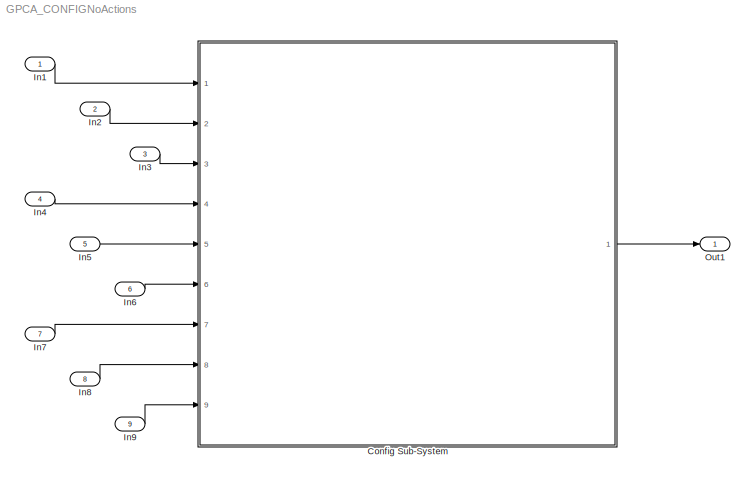
MODEL GPCA_CONFIGNoActions
KIND model
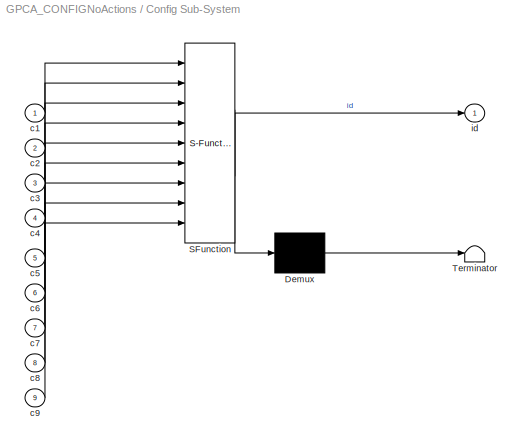
BLOCK [SubSystem] Config  Sub-System
  ErrorFcn = Stateflow.Translate.translate
  PermitHierarchicalResolution = ExplicitOnly
  Ports = [9, 1]
  RequestExecContextInheritance = off
  SFBlockType = Chart
  SID = 35
  TreatAsAtomicUnit = on
  Variant = off
BLOCK [Demux] Config  Sub-System/ Demux 
  Outputs = 1
  Ports = [1, 1]
  SID = 35::390
BLOCK [S-Function] Config  Sub-System/ SFunction 
  EnableBusSupport = on
  FunctionName = sf_sfun
  PortCounts = [9 2]
  Ports = [9, 2]
  SFcnIsStateOwnerBlock = off
  SFunctionDeploymentMode = off
  SID = 35::389
  Tag = Stateflow S-Function GPCA_CONFIGNoActions 2
BLOCK [Terminator] Config  Sub-System/ Terminator 
  SID = 35::391
BLOCK [Inport] Config  Sub-System/c1
  IconDisplay = Port number
  SID = 35::392
BLOCK [Inport] Config  Sub-System/c2
  IconDisplay = Port number
  Port = 2
  SID = 35::393
BLOCK [Inport] Config  Sub-System/c3
  IconDisplay = Port number
  Port = 3
  SID = 35::394
BLOCK [Inport] Config  Sub-System/c4
  IconDisplay = Port number
  Port = 4
  SID = 35::395
BLOCK [Inport] Config  Sub-System/c5
  IconDisplay = Port number
  Port = 5
  SID = 35::396
BLOCK [Inport] Config  Sub-System/c6
  IconDisplay = Port number
  Port = 6
  SID = 35::397
BLOCK [Inport] Config  Sub-System/c7
  IconDisplay = Port number
  Port = 7
  SID = 35::398
BLOCK [Inport] Config  Sub-System/c8
  IconDisplay = Port number
  Port = 8
  SID = 35::399
BLOCK [Inport] Config  Sub-System/c9
  IconDisplay = Port number
  Port = 9
  SID = 35::400
BLOCK [Outport] Config  Sub-System/id
  IconDisplay = Port number
  SID = 35::401
BLOCK [Inport] In1
  IconDisplay = Port number
  OutDataTypeStr = boolean
  SID = 140
BLOCK [Inport] In2
  IconDisplay = Port number
  OutDataTypeStr = boolean
  Port = 2
  SID = 141
BLOCK [Inport] In3
  IconDisplay = Port number
  OutDataTypeStr = boolean
  Port = 3
  SID = 142
BLOCK [Inport] In4
  IconDisplay = Port number
  OutDataTypeStr = boolean
  Port = 4
  SID = 143
BLOCK [Inport] In5
  IconDisplay = Port number
  OutDataTypeStr = boolean
  Port = 5
  SID = 144
BLOCK [Inport] In6
  IconDisplay = Port number
  OutDataTypeStr = boolean
  Port = 6
  SID = 145
BLOCK [Inport] In7
  IconDisplay = Port number
  OutDataTypeStr = boolean
  Port = 7
  SID = 146
BLOCK [Inport] In8
  IconDisplay = Port number
  OutDataTypeStr = boolean
  Port = 8
  SID = 147
BLOCK [Inport] In9
  IconDisplay = Port number
  OutDataTypeStr = boolean
  Port = 9
  SID = 148
BLOCK [Outport] Out1
  IconDisplay = Port number
  SID = 139
LINE Config  Sub-System/ Demux :1 -> Config  Sub-System/ Terminator :1
LINE Config  Sub-System/ SFunction :1 -> Config  Sub-System/ Demux :1
LINE Config  Sub-System/ SFunction :2 -> Config  Sub-System/id:1
LINE Config  Sub-System/c1:1 -> Config  Sub-System/ SFunction :1
LINE Config  Sub-System/c2:1 -> Config  Sub-System/ SFunction :2
LINE Config  Sub-System/c3:1 -> Config  Sub-System/ SFunction :3
LINE Config  Sub-System/c4:1 -> Config  Sub-System/ SFunction :4
LINE Config  Sub-System/c5:1 -> Config  Sub-System/ SFunction :5
LINE Config  Sub-System/c6:1 -> Config  Sub-System/ SFunction :6
LINE Config  Sub-System/c7:1 -> Config  Sub-System/ SFunction :7
LINE Config  Sub-System/c8:1 -> Config  Sub-System/ SFunction :8
LINE Config  Sub-System/c9:1 -> Config  Sub-System/ SFunction :9
LINE Config  Sub-System:1 -> Out1:1
LINE In1:1 -> Config  Sub-System:1
LINE In2:1 -> Config  Sub-System:2
LINE In3:1 -> Config  Sub-System:3
LINE In4:1 -> Config  Sub-System:4
LINE In5:1 -> Config  Sub-System:5
LINE In6:1 -> Config  Sub-System:6
LINE In7:1 -> Config  Sub-System:7
LINE In8:1 -> Config  Sub-System:8
LINE In9:1 -> Config  Sub-System:9
CHART Config  Sub-System states=16 transitions=32
  STATE_LABEL 'Configuration\\nen: id=2\\n\\n'
  STATE_LABEL 'Prescription_Config\\nentry: id=22;\\n'
  STATE_LABEL 'Patient_Drug_info\\nentry: id=221;'
  STATE_LABEL 'GetParam\\nentry: id = 222;'
  STATE_LABEL 'DisplayParam\\nentry: id=222;'
  STATE_LABEL 'GetDrugSafeValues\\nentry:id =224;'
  STATE_LABEL 'DisplayErrorMessage\\nentry: id=223'
  STATE_LABEL 'ValidateParam\\nentry: id=225;'
  STATE_LABEL 'MAIN\\nentry: id = 21;\\n'
  STATE_LABEL 'NOT_ON\\nen: id=1'
  STATE_LABEL 'SelectType\\nentry: id = 23;'
  STATE_LABEL 'Infusion_info\\nentry: id = 411;'
  STATE_LABEL 'GetInfusionParam\\nentry: id=413;\\n\\n'
  STATE_LABEL 'RequestInfusionParam\\nentry :id = 412;'
  STATE_LABEL 'ValidateInfusionParam\\nentry: id = 414;'
  STATE_LABEL 'ConfirmInfusionInitation\\nentry:id = 24;\\n'
